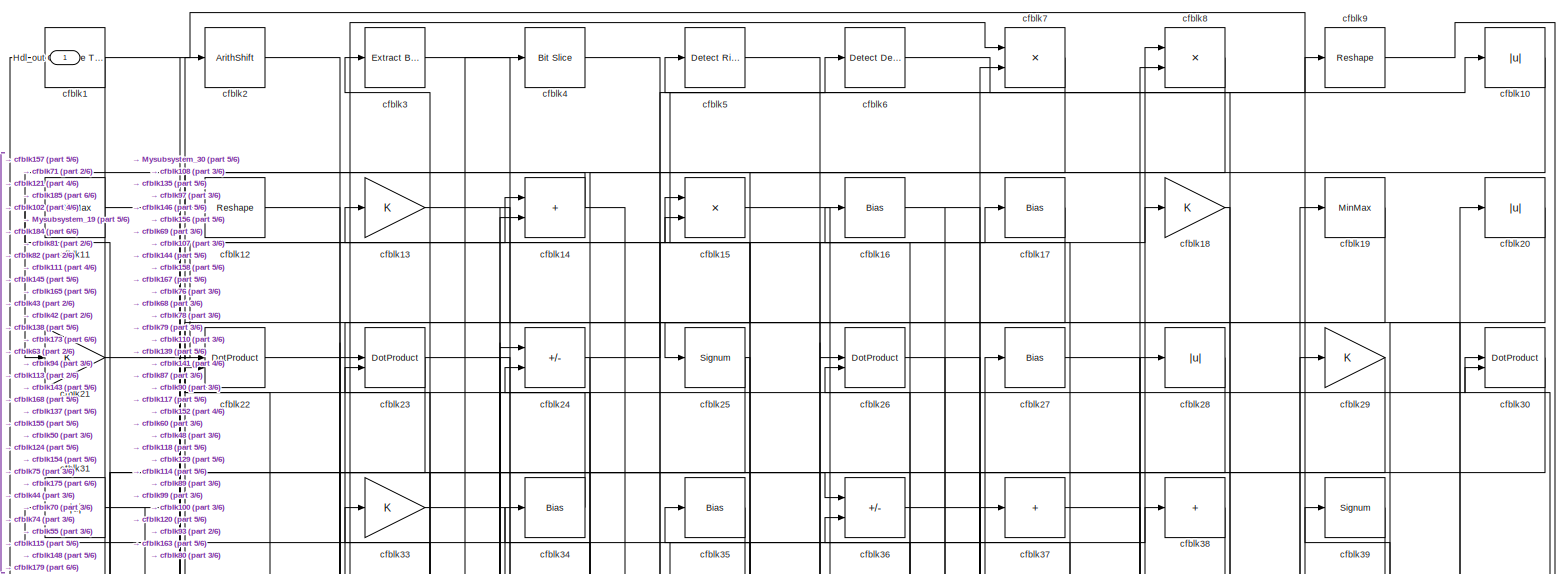
[diagram: root canvas - part 1/6, full width, top band]
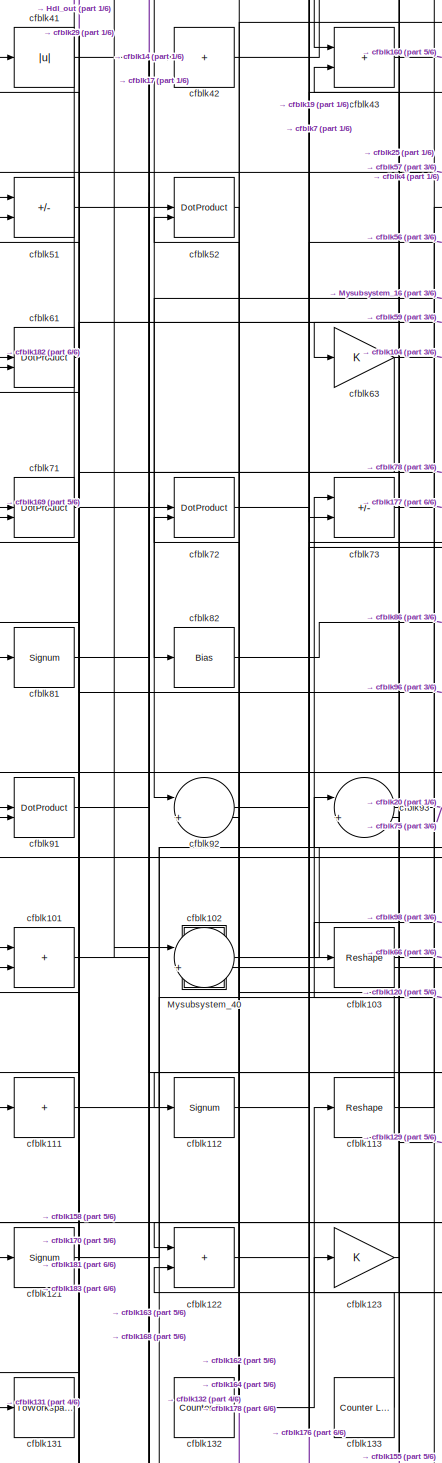
[diagram: root canvas - part 2/6, middle left region]
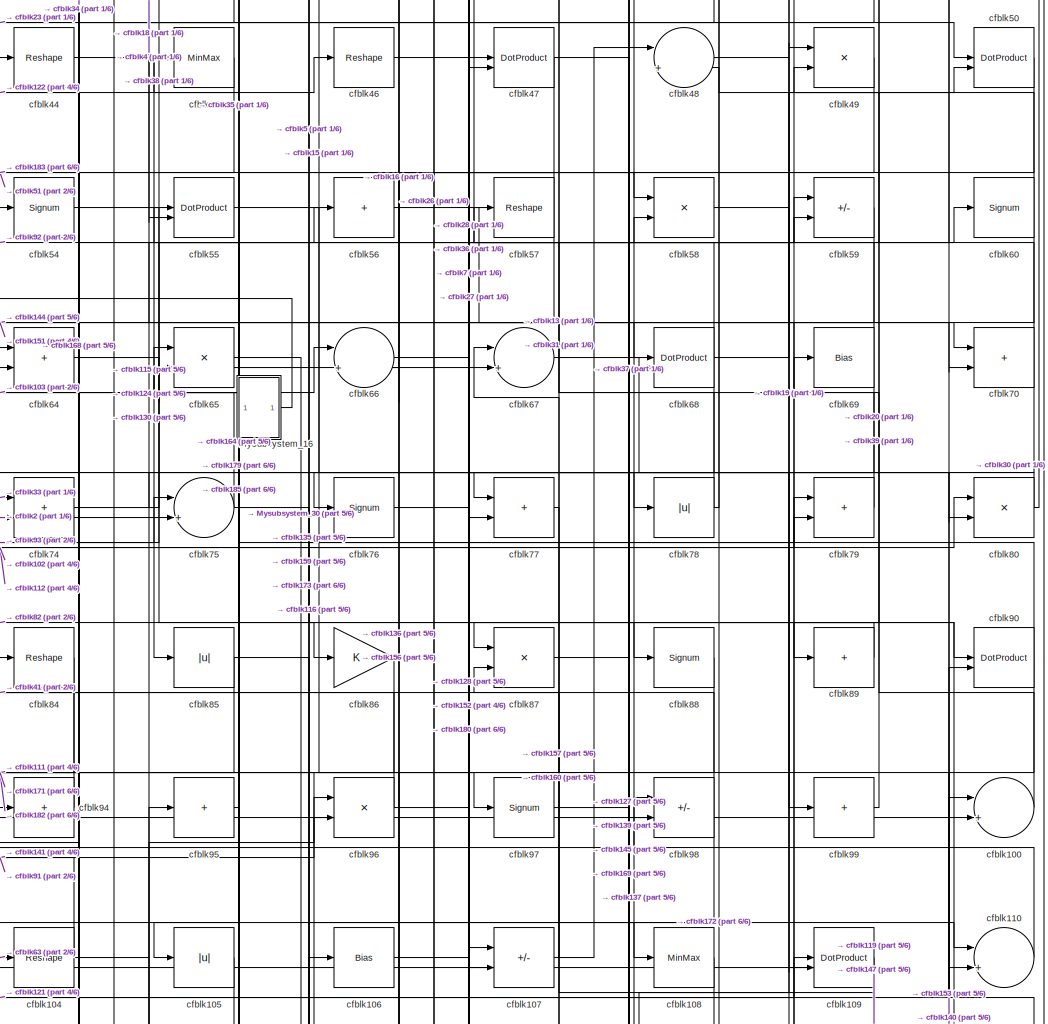
[diagram: root canvas - part 3/6, central region]
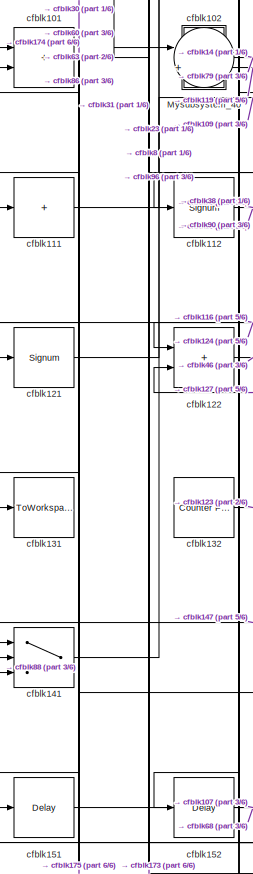
[diagram: root canvas - part 4/6, bottom left region]
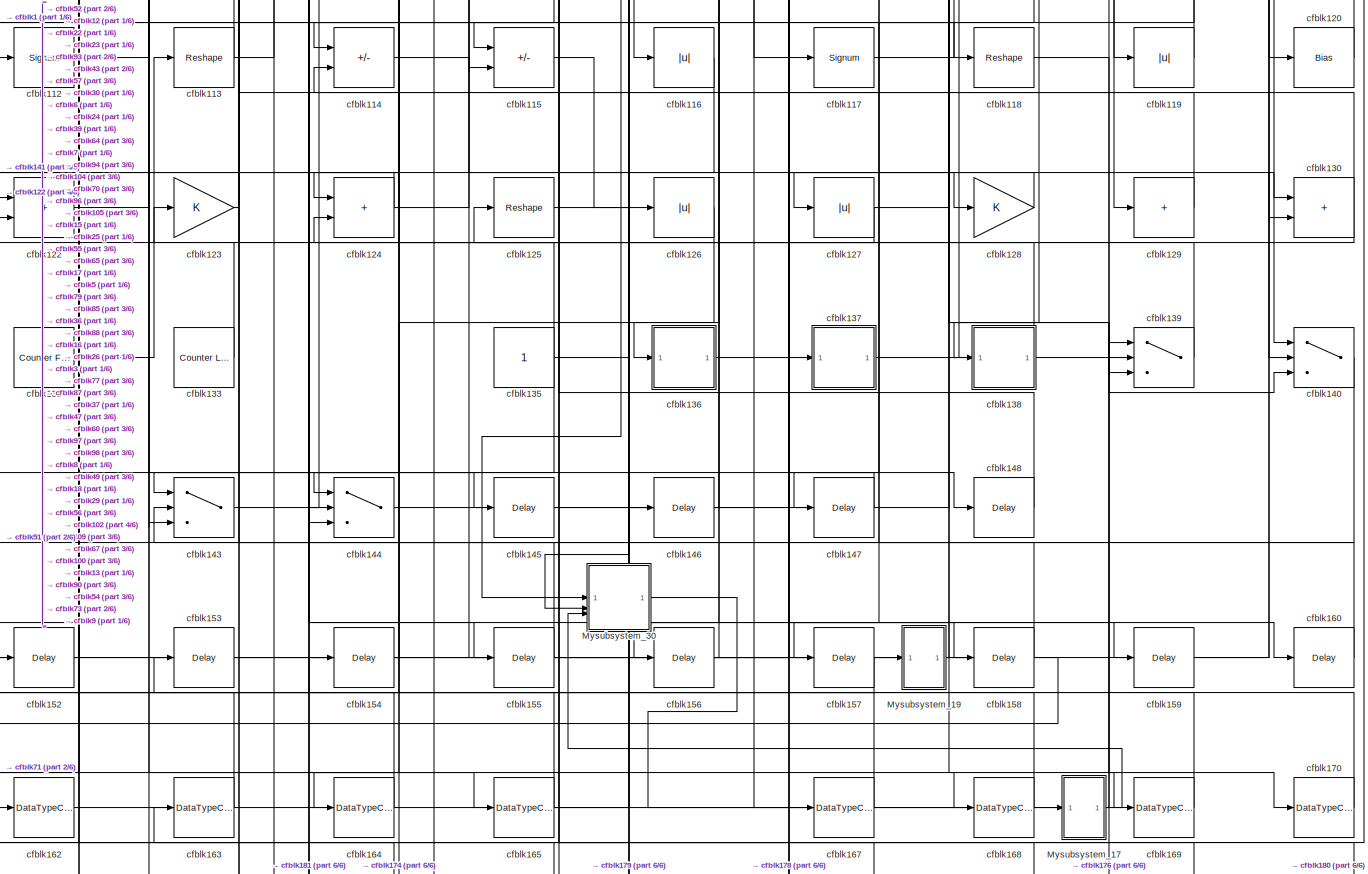
[diagram: root canvas - part 5/6, full width, bottom band]
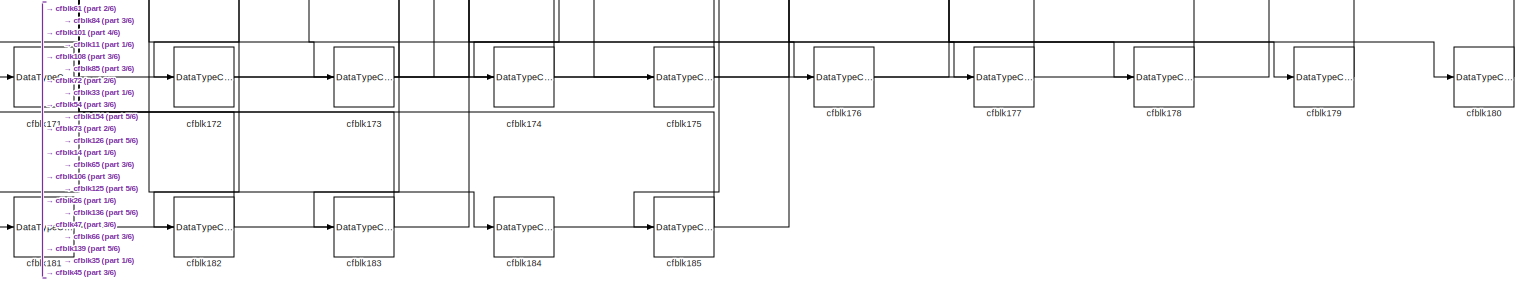
[diagram: root canvas - part 6/6, full width, bottom band]
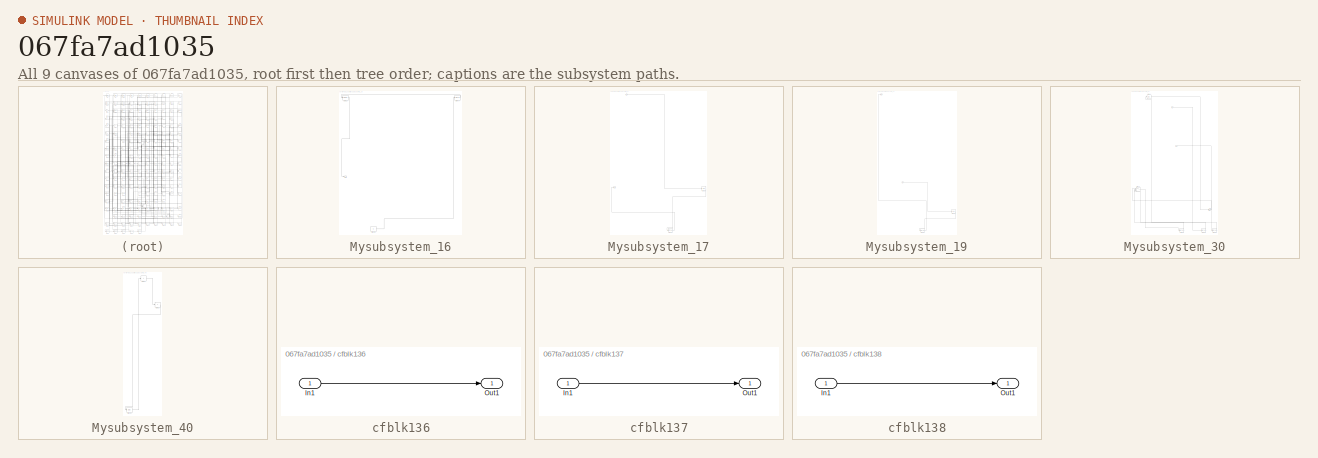
[diagram: thumbnail index - all 9 canvases of the model, root first then tree order]
MODEL slx_067fa7ad1035
KIND model
CONFIG AbsTol = auto
CONFIG EnableMultiTasking = off
CONFIG FixedStep = auto
CONFIG MaxStep = auto
CONFIG MinStep = auto
CONFIG RelTol = 1e-3
CONFIG SampleTimeConstraint = Unconstrained
CONFIG SolverName = VariableStepAuto
CONFIG StartTime = 0.0
CONFIG StopTime = 10.0
BLOCK [Outport] Hdl_out
  OutDataTypeStr = uint8
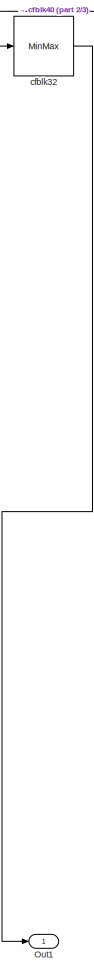
[diagram: Mysubsystem_16 - part 1/3, top left region]
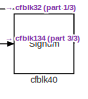
[diagram: Mysubsystem_16 - part 2/3, top right region]
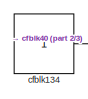
[diagram: Mysubsystem_16 - part 3/3, bottom left region]
BLOCK [SubSystem] Mysubsystem_16
  RTWFcnName = Mysubsystem_16
  RTWFcnNameOpts = User specified
  RTWFileNameOpts = Use function name
  RTWSystemCode = Reusable function
  TreatAsAtomicUnit = on
BLOCK [Outport] Mysubsystem_16/Out1
BLOCK [Constant] Mysubsystem_16/cfblk134
  SampleTime = -1
BLOCK [MinMax] Mysubsystem_16/cfblk32
BLOCK [Signum] Mysubsystem_16/cfblk40
BLOCK [SubSystem] Mysubsystem_17
  RTWFcnName = Mysubsystem_17
  RTWFcnNameOpts = User specified
  RTWFileNameOpts = Use function name
  RTWSystemCode = Reusable function
  TreatAsAtomicUnit = on
BLOCK [Inport] Mysubsystem_17/In1
BLOCK [Outport] Mysubsystem_17/Out1
BLOCK [Delay] Mysubsystem_17/cfblk150
  InputPortMap = u0
  SampleTime = 1
BLOCK [DataTypeConversion] Mysubsystem_17/cfblk187
  OutDataTypeStr = uint8
  RndMeth = Floor
  SaturateOnIntegerOverflow = off
BLOCK [SubSystem] Mysubsystem_19
  RTWFcnName = Mysubsystem_19
  RTWFcnNameOpts = User specified
  RTWFileNameOpts = Use function name
  RTWSystemCode = Reusable function
  TreatAsAtomicUnit = on
BLOCK [Inport] Mysubsystem_19/In1
BLOCK [Outport] Mysubsystem_19/Out1
BLOCK [Delay] Mysubsystem_19/cfblk149
  InputPortMap = u0
  SampleTime = 1
BLOCK [DataTypeConversion] Mysubsystem_19/cfblk166
  OutDataTypeStr = uint8
  RndMeth = Floor
  SaturateOnIntegerOverflow = off
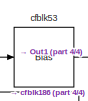
[diagram: Mysubsystem_30 - part 1/4, top left region]
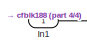
[diagram: Mysubsystem_30 - part 2/4, top center region]
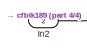
[diagram: Mysubsystem_30 - part 3/4, central region]
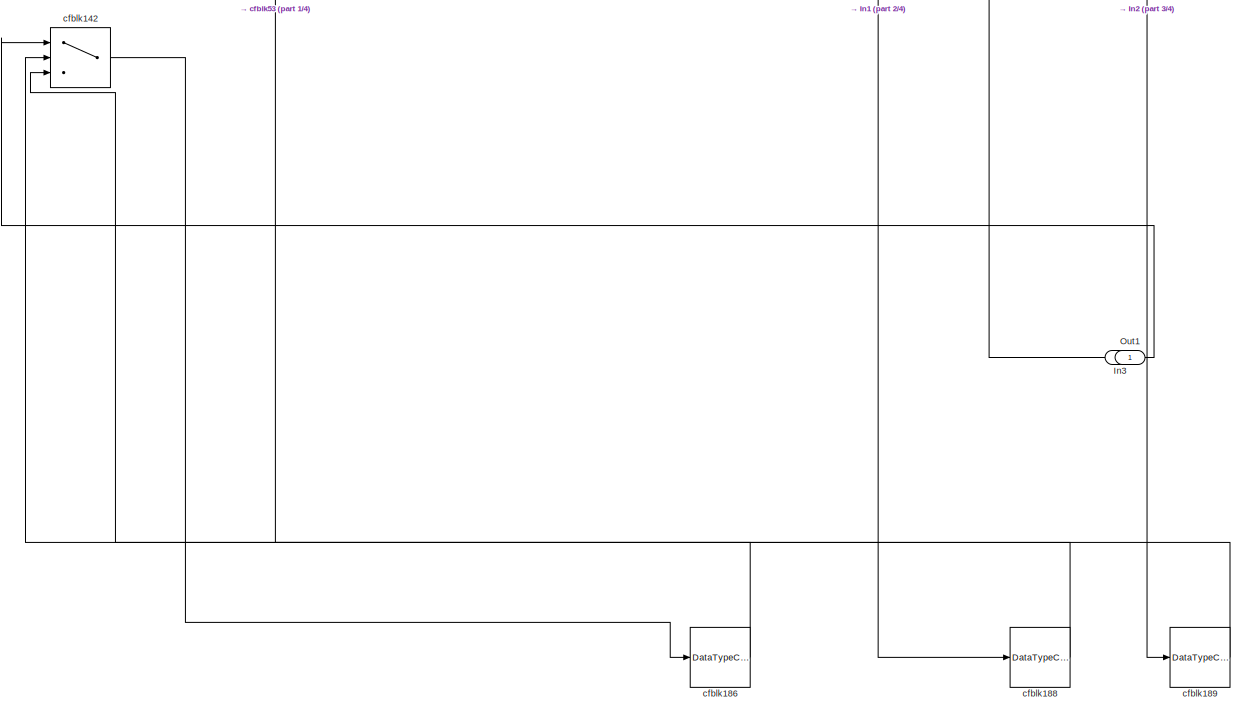
[diagram: Mysubsystem_30 - part 4/4, full width, bottom band]
BLOCK [SubSystem] Mysubsystem_30
  RTWFcnName = Mysubsystem_30
  RTWFcnNameOpts = User specified
  RTWFileNameOpts = Use function name
  RTWSystemCode = Reusable function
  TreatAsAtomicUnit = on
BLOCK [Inport] Mysubsystem_30/In1
BLOCK [Inport] Mysubsystem_30/In2
  Port = 2
BLOCK [Inport] Mysubsystem_30/In3
  Port = 3
BLOCK [Outport] Mysubsystem_30/Out1
BLOCK [Switch] Mysubsystem_30/cfblk142
  InputSameDT = off
  SaturateOnIntegerOverflow = off
BLOCK [DataTypeConversion] Mysubsystem_30/cfblk186
  OutDataTypeStr = uint8
  RndMeth = Floor
  SaturateOnIntegerOverflow = off
BLOCK [DataTypeConversion] Mysubsystem_30/cfblk188
  OutDataTypeStr = uint8
  RndMeth = Floor
  SaturateOnIntegerOverflow = off
BLOCK [DataTypeConversion] Mysubsystem_30/cfblk189
  OutDataTypeStr = uint8
  RndMeth = Floor
  SaturateOnIntegerOverflow = off
BLOCK [Bias] Mysubsystem_30/cfblk53
  Bias = 0.0
  SaturateOnIntegerOverflow = off
BLOCK [SubSystem] Mysubsystem_40
  RTWFcnName = Mysubsystem_40
  RTWFcnNameOpts = User specified
  RTWFileNameOpts = Use function name
  RTWSystemCode = Reusable function
  TreatAsAtomicUnit = on
BLOCK [Delay] Mysubsystem_40/cfblk161
  InputPortMap = u0
  SampleTime = 1
BLOCK [Sum] Mysubsystem_40/cfblk62
  IconShape = rectangular
  Inputs = +
BLOCK [Sum] Mysubsystem_40/cfblk83
  IconShape = rectangular
  Inputs = +
BLOCK [Reference] cfblk1  REF=hdlsllib/Logic and Bit
Operations/Compare
To Zero
  SourceBlock = hdlsllib/Logic and Bit\nOperations/Compare\nTo Zero
  SourceType = Compare To Zero
BLOCK [Abs] cfblk10
  OutDataTypeStr = uint8
  SaturateOnIntegerOverflow = off
BLOCK [Sum] cfblk100
  Inputs = |++
  OutDataTypeStr = uint8
BLOCK [Sum] cfblk101
  IconShape = rectangular
  OutDataTypeStr = uint8
BLOCK [Sum] cfblk102
  Inputs = |++
  OutDataTypeStr = uint8
BLOCK [Reshape] cfblk103
BLOCK [Reshape] cfblk104
BLOCK [Abs] cfblk105
  OutDataTypeStr = uint8
  SaturateOnIntegerOverflow = off
BLOCK [Bias] cfblk106
  Bias = 0.0
  SaturateOnIntegerOverflow = off
BLOCK [Sum] cfblk107
  IconShape = rectangular
  Inputs = +-
  OutDataTypeStr = uint8
BLOCK [MinMax] cfblk108
  OutDataTypeStr = uint8
BLOCK [DotProduct] cfblk109
  OutDataTypeStr = uint8
BLOCK [MinMax] cfblk11
  OutDataTypeStr = uint8
BLOCK [Sum] cfblk110
  Inputs = |++
  OutDataTypeStr = uint8
BLOCK [Sum] cfblk111
  IconShape = rectangular
  Inputs = +
  OutDataTypeStr = uint8
BLOCK [Signum] cfblk112
BLOCK [Reshape] cfblk113
BLOCK [Sum] cfblk114
  IconShape = rectangular
  Inputs = +-
  OutDataTypeStr = uint8
BLOCK [Sum] cfblk115
  IconShape = rectangular
  Inputs = +-
  OutDataTypeStr = uint8
BLOCK [Abs] cfblk116
  OutDataTypeStr = uint8
  SaturateOnIntegerOverflow = off
BLOCK [Signum] cfblk117
BLOCK [Reshape] cfblk118
BLOCK [Abs] cfblk119
  OutDataTypeStr = uint8
  SaturateOnIntegerOverflow = off
BLOCK [Reshape] cfblk12
BLOCK [Bias] cfblk120
  Bias = 0.0
  SaturateOnIntegerOverflow = off
BLOCK [Signum] cfblk121
BLOCK [Sum] cfblk122
  IconShape = rectangular
  OutDataTypeStr = uint8
BLOCK [Gain] cfblk123
  OutDataTypeStr = uint8
BLOCK [Sum] cfblk124
  IconShape = rectangular
  OutDataTypeStr = uint8
BLOCK [Reshape] cfblk125
BLOCK [Abs] cfblk126
  OutDataTypeStr = uint8
  SaturateOnIntegerOverflow = off
BLOCK [Abs] cfblk127
  OutDataTypeStr = uint8
  SaturateOnIntegerOverflow = off
BLOCK [Gain] cfblk128
  OutDataTypeStr = uint8
BLOCK [Sum] cfblk129
  IconShape = rectangular
  Inputs = +
  OutDataTypeStr = uint8
BLOCK [Gain] cfblk13
  OutDataTypeStr = uint8
BLOCK [Sum] cfblk130
  IconShape = rectangular
  OutDataTypeStr = uint8
BLOCK [ToWorkspace] cfblk131
  MaxDataPoints = inf
  SampleTime = -1
  SaveFormat = Timeseries
  VariableName = simout
BLOCK [Reference] cfblk132  REF=hdlsllib/Sources/Counter
Free-Running
  SourceBlock = hdlsllib/Sources/Counter\nFree-Running
  SourceType = Counter Free-Running
BLOCK [Reference] cfblk133  REF=hdlsllib/Sources/Counter
Limited
  SourceBlock = hdlsllib/Sources/Counter\nLimited
  SourceType = Counter Limited
BLOCK [Constant] cfblk135
  OutDataTypeStr = uint8
  SampleTime = -1
BLOCK [SubSystem] cfblk136
  LibrarySourceBlock = hdlsllib/Ports &\nSubsystems/Subsystem
BLOCK [Inport] cfblk136/In1
BLOCK [Outport] cfblk136/Out1
BLOCK [SubSystem] cfblk137
  LibrarySourceBlock = hdlsllib/Ports &\nSubsystems/Subsystem
BLOCK [Inport] cfblk137/In1
BLOCK [Outport] cfblk137/Out1
BLOCK [SubSystem] cfblk138
  LibrarySourceBlock = hdlsllib/Ports &\nSubsystems/Subsystem
BLOCK [Inport] cfblk138/In1
BLOCK [Outport] cfblk138/Out1
BLOCK [Switch] cfblk139
  InputSameDT = off
  OutDataTypeStr = uint8
  SaturateOnIntegerOverflow = off
BLOCK [Sum] cfblk14
  IconShape = rectangular
  OutDataTypeStr = uint8
BLOCK [Switch] cfblk140
  InputSameDT = off
  OutDataTypeStr = uint8
  SaturateOnIntegerOverflow = off
BLOCK [Switch] cfblk141
  InputSameDT = off
  OutDataTypeStr = uint8
  SaturateOnIntegerOverflow = off
BLOCK [Switch] cfblk143
  InputSameDT = off
  OutDataTypeStr = uint8
  SaturateOnIntegerOverflow = off
BLOCK [Switch] cfblk144
  InputSameDT = off
  OutDataTypeStr = uint8
  SaturateOnIntegerOverflow = off
BLOCK [Delay] cfblk145
  InputPortMap = u0
  SampleTime = 1
BLOCK [Delay] cfblk146
  InputPortMap = u0
  SampleTime = 1
BLOCK [Delay] cfblk147
  InputPortMap = u0
  SampleTime = 1
BLOCK [Delay] cfblk148
  InputPortMap = u0
  SampleTime = 1
BLOCK [Product] cfblk15
  Inputs = */
  OutDataTypeStr = uint8
  RndMeth = Zero
  SaturateOnIntegerOverflow = on
BLOCK [Delay] cfblk151
  InputPortMap = u0
  SampleTime = 1
BLOCK [Delay] cfblk152
  InputPortMap = u0
  SampleTime = 1
BLOCK [Delay] cfblk153
  InputPortMap = u0
  SampleTime = 1
BLOCK [Delay] cfblk154
  InputPortMap = u0
  SampleTime = 1
BLOCK [Delay] cfblk155
  InputPortMap = u0
  SampleTime = 1
BLOCK [Delay] cfblk156
  InputPortMap = u0
  SampleTime = 1
BLOCK [Delay] cfblk157
  InputPortMap = u0
  SampleTime = 1
BLOCK [Delay] cfblk158
  InputPortMap = u0
  SampleTime = 1
BLOCK [Delay] cfblk159
  InputPortMap = u0
  SampleTime = 1
BLOCK [Bias] cfblk16
  Bias = 0.0
  SaturateOnIntegerOverflow = off
BLOCK [Delay] cfblk160
  InputPortMap = u0
  SampleTime = 1
BLOCK [DataTypeConversion] cfblk162
  OutDataTypeStr = uint8
  RndMeth = Floor
  SaturateOnIntegerOverflow = off
BLOCK [DataTypeConversion] cfblk163
  OutDataTypeStr = uint8
  RndMeth = Floor
  SaturateOnIntegerOverflow = off
BLOCK [DataTypeConversion] cfblk164
  OutDataTypeStr = uint8
  RndMeth = Floor
  SaturateOnIntegerOverflow = off
BLOCK [DataTypeConversion] cfblk165
  OutDataTypeStr = uint8
  RndMeth = Floor
  SaturateOnIntegerOverflow = off
BLOCK [DataTypeConversion] cfblk167
  OutDataTypeStr = uint8
  RndMeth = Floor
  SaturateOnIntegerOverflow = off
BLOCK [DataTypeConversion] cfblk168
  OutDataTypeStr = uint8
  RndMeth = Floor
  SaturateOnIntegerOverflow = off
BLOCK [DataTypeConversion] cfblk169
  OutDataTypeStr = uint8
  RndMeth = Floor
  SaturateOnIntegerOverflow = off
BLOCK [Bias] cfblk17
  Bias = 0.0
  SaturateOnIntegerOverflow = off
BLOCK [DataTypeConversion] cfblk170
  OutDataTypeStr = uint8
  RndMeth = Floor
  SaturateOnIntegerOverflow = off
BLOCK [DataTypeConversion] cfblk171
  OutDataTypeStr = uint8
  RndMeth = Floor
  SaturateOnIntegerOverflow = off
BLOCK [DataTypeConversion] cfblk172
  OutDataTypeStr = uint8
  RndMeth = Floor
  SaturateOnIntegerOverflow = off
BLOCK [DataTypeConversion] cfblk173
  OutDataTypeStr = uint8
  RndMeth = Floor
  SaturateOnIntegerOverflow = off
BLOCK [DataTypeConversion] cfblk174
  OutDataTypeStr = uint8
  RndMeth = Floor
  SaturateOnIntegerOverflow = off
BLOCK [DataTypeConversion] cfblk175
  OutDataTypeStr = uint8
  RndMeth = Floor
  SaturateOnIntegerOverflow = off
BLOCK [DataTypeConversion] cfblk176
  OutDataTypeStr = uint8
  RndMeth = Floor
  SaturateOnIntegerOverflow = off
BLOCK [DataTypeConversion] cfblk177
  OutDataTypeStr = uint8
  RndMeth = Floor
  SaturateOnIntegerOverflow = off
BLOCK [DataTypeConversion] cfblk178
  OutDataTypeStr = uint8
  RndMeth = Floor
  SaturateOnIntegerOverflow = off
BLOCK [DataTypeConversion] cfblk179
  OutDataTypeStr = uint8
  RndMeth = Floor
  SaturateOnIntegerOverflow = off
BLOCK [Gain] cfblk18
  OutDataTypeStr = uint8
BLOCK [DataTypeConversion] cfblk180
  OutDataTypeStr = uint8
  RndMeth = Floor
  SaturateOnIntegerOverflow = off
BLOCK [DataTypeConversion] cfblk181
  OutDataTypeStr = uint8
  RndMeth = Floor
  SaturateOnIntegerOverflow = off
BLOCK [DataTypeConversion] cfblk182
  OutDataTypeStr = uint8
  RndMeth = Floor
  SaturateOnIntegerOverflow = off
BLOCK [DataTypeConversion] cfblk183
  OutDataTypeStr = uint8
  RndMeth = Floor
  SaturateOnIntegerOverflow = off
BLOCK [DataTypeConversion] cfblk184
  OutDataTypeStr = uint8
  RndMeth = Floor
  SaturateOnIntegerOverflow = off
BLOCK [DataTypeConversion] cfblk185
  OutDataTypeStr = uint8
  RndMeth = Floor
  SaturateOnIntegerOverflow = off
BLOCK [MinMax] cfblk19
  OutDataTypeStr = uint8
BLOCK [ArithShift] cfblk2
  BitShiftNumber = 8
  InputPortMap = u0
BLOCK [Abs] cfblk20
  OutDataTypeStr = uint8
  SaturateOnIntegerOverflow = off
BLOCK [Gain] cfblk21
  OutDataTypeStr = uint8
BLOCK [DotProduct] cfblk22
  OutDataTypeStr = uint8
BLOCK [DotProduct] cfblk23
  OutDataTypeStr = uint8
BLOCK [Sum] cfblk24
  IconShape = rectangular
  Inputs = +-
  OutDataTypeStr = uint8
BLOCK [Signum] cfblk25
BLOCK [DotProduct] cfblk26
  OutDataTypeStr = uint8
BLOCK [Bias] cfblk27
  Bias = 0.0
  SaturateOnIntegerOverflow = off
BLOCK [Abs] cfblk28
  OutDataTypeStr = uint8
  SaturateOnIntegerOverflow = off
BLOCK [Gain] cfblk29
  OutDataTypeStr = uint8
BLOCK [Reference] cfblk3  REF=simulink/Logic and Bit
Operations/Extract Bits
  LibrarySourceBlock = hdlsllib/Logic and Bit\nOperations/Extract Bits
  SourceBlock = simulink/Logic and Bit\nOperations/Extract Bits
  SourceType = Extract Bits
BLOCK [DotProduct] cfblk30
  OutDataTypeStr = uint8
BLOCK [Abs] cfblk31
  OutDataTypeStr = uint8
  SaturateOnIntegerOverflow = off
BLOCK [Gain] cfblk33
  OutDataTypeStr = uint8
BLOCK [Bias] cfblk34
  Bias = 0.0
  SaturateOnIntegerOverflow = off
BLOCK [Bias] cfblk35
  Bias = 0.0
  SaturateOnIntegerOverflow = off
BLOCK [Sum] cfblk36
  IconShape = rectangular
  Inputs = +-
  OutDataTypeStr = uint8
BLOCK [Sum] cfblk37
  IconShape = rectangular
  Inputs = +
  OutDataTypeStr = uint8
BLOCK [Sum] cfblk38
  IconShape = rectangular
  Inputs = +
  OutDataTypeStr = uint8
BLOCK [Signum] cfblk39
BLOCK [Reference] cfblk4  REF=hdlsllib/Logic and Bit
Operations/Bit Slice
  SourceBlock = hdlsllib/Logic and Bit\nOperations/Bit Slice
  SourceType = Bit Slice
BLOCK [Abs] cfblk41
  OutDataTypeStr = uint8
  SaturateOnIntegerOverflow = off
BLOCK [Sum] cfblk42
  IconShape = rectangular
  Inputs = +
  OutDataTypeStr = uint8
BLOCK [Sum] cfblk43
  IconShape = rectangular
  OutDataTypeStr = uint8
BLOCK [Reshape] cfblk44
BLOCK [MinMax] cfblk45
  OutDataTypeStr = uint8
BLOCK [Reshape] cfblk46
BLOCK [DotProduct] cfblk47
  OutDataTypeStr = uint8
BLOCK [Sum] cfblk48
  Inputs = |++
  OutDataTypeStr = uint8
BLOCK [Product] cfblk49
  Inputs = */
  OutDataTypeStr = uint8
  RndMeth = Zero
  SaturateOnIntegerOverflow = on
BLOCK [Reference] cfblk5  REF=hdlsllib/Logic and Bit
Operations/Detect Rise
Nonnegative
  SourceBlock = hdlsllib/Logic and Bit\nOperations/Detect Rise\nNonnegative
  SourceType = Detect Rise Nonnegative
BLOCK [DotProduct] cfblk50
  OutDataTypeStr = uint8
BLOCK [Sum] cfblk51
  IconShape = rectangular
  Inputs = +-
  OutDataTypeStr = uint8
BLOCK [DotProduct] cfblk52
  OutDataTypeStr = uint8
BLOCK [Signum] cfblk54
BLOCK [DotProduct] cfblk55
  OutDataTypeStr = uint8
BLOCK [Sum] cfblk56
  IconShape = rectangular
  Inputs = +
  OutDataTypeStr = uint8
BLOCK [Reshape] cfblk57
BLOCK [Product] cfblk58
  Inputs = */
  OutDataTypeStr = uint8
  RndMeth = Zero
  SaturateOnIntegerOverflow = on
BLOCK [Sum] cfblk59
  IconShape = rectangular
  Inputs = +-
  OutDataTypeStr = uint8
BLOCK [Reference] cfblk6  REF=simulink/Logic and Bit
Operations/Detect
Decrease
  LibrarySourceBlock = hdlsllib/Logic and Bit\nOperations/Detect\nDecrease
  SourceBlock = simulink/Logic and Bit\nOperations/Detect\nDecrease
  SourceType = Detect Decrease
BLOCK [Signum] cfblk60
BLOCK [DotProduct] cfblk61
  OutDataTypeStr = uint8
BLOCK [Gain] cfblk63
  OutDataTypeStr = uint8
BLOCK [Sum] cfblk64
  IconShape = rectangular
  OutDataTypeStr = uint8
BLOCK [Product] cfblk65
  Inputs = */
  OutDataTypeStr = uint8
  RndMeth = Zero
  SaturateOnIntegerOverflow = on
BLOCK [Sum] cfblk66
  Inputs = |++
  OutDataTypeStr = uint8
BLOCK [Sum] cfblk67
  Inputs = |++
  OutDataTypeStr = uint8
BLOCK [DotProduct] cfblk68
  OutDataTypeStr = uint8
BLOCK [Bias] cfblk69
  Bias = 0.0
  SaturateOnIntegerOverflow = off
BLOCK [Product] cfblk7
  Inputs = */
  OutDataTypeStr = uint8
  RndMeth = Zero
  SaturateOnIntegerOverflow = on
BLOCK [Sum] cfblk70
  IconShape = rectangular
  OutDataTypeStr = uint8
BLOCK [DotProduct] cfblk71
  OutDataTypeStr = uint8
BLOCK [DotProduct] cfblk72
  OutDataTypeStr = uint8
BLOCK [Sum] cfblk73
  IconShape = rectangular
  Inputs = +-
  OutDataTypeStr = uint8
BLOCK [Sum] cfblk74
  IconShape = rectangular
  OutDataTypeStr = uint8
BLOCK [Sum] cfblk75
  Inputs = |++
  OutDataTypeStr = uint8
BLOCK [Signum] cfblk76
BLOCK [Sum] cfblk77
  IconShape = rectangular
  OutDataTypeStr = uint8
BLOCK [Abs] cfblk78
  OutDataTypeStr = uint8
  SaturateOnIntegerOverflow = off
BLOCK [Sum] cfblk79
  IconShape = rectangular
  OutDataTypeStr = uint8
BLOCK [Product] cfblk8
  Inputs = */
  OutDataTypeStr = uint8
  RndMeth = Zero
  SaturateOnIntegerOverflow = on
BLOCK [Product] cfblk80
  Inputs = */
  OutDataTypeStr = uint8
  RndMeth = Zero
  SaturateOnIntegerOverflow = on
BLOCK [Signum] cfblk81
BLOCK [Bias] cfblk82
  Bias = 0.0
  SaturateOnIntegerOverflow = off
BLOCK [Reshape] cfblk84
BLOCK [Abs] cfblk85
  OutDataTypeStr = uint8
  SaturateOnIntegerOverflow = off
BLOCK [Gain] cfblk86
  OutDataTypeStr = uint8
BLOCK [Product] cfblk87
  Inputs = */
  OutDataTypeStr = uint8
  RndMeth = Zero
  SaturateOnIntegerOverflow = on
BLOCK [Signum] cfblk88
BLOCK [Sum] cfblk89
  IconShape = rectangular
  Inputs = +
  OutDataTypeStr = uint8
BLOCK [Reshape] cfblk9
BLOCK [DotProduct] cfblk90
  OutDataTypeStr = uint8
BLOCK [DotProduct] cfblk91
  OutDataTypeStr = uint8
BLOCK [Sum] cfblk92
  Inputs = |++
  OutDataTypeStr = uint8
BLOCK [Sum] cfblk93
  Inputs = |++
  OutDataTypeStr = uint8
BLOCK [Sum] cfblk94
  IconShape = rectangular
  Inputs = +
  OutDataTypeStr = uint8
BLOCK [Sum] cfblk95
  IconShape = rectangular
  Inputs = +
  OutDataTypeStr = uint8
BLOCK [Product] cfblk96
  Inputs = */
  OutDataTypeStr = uint8
  RndMeth = Zero
  SaturateOnIntegerOverflow = on
BLOCK [Signum] cfblk97
BLOCK [Sum] cfblk98
  IconShape = rectangular
  Inputs = +-
  OutDataTypeStr = uint8
BLOCK [Sum] cfblk99
  IconShape = rectangular
  Inputs = +
  OutDataTypeStr = uint8
LINE Mysubsystem_16/cfblk134:1 -> Mysubsystem_16/cfblk40:1
LINE Mysubsystem_16/cfblk32:1 -> Mysubsystem_16/Out1:1
LINE Mysubsystem_16/cfblk40:1 -> Mysubsystem_16/cfblk32:1
LINE Mysubsystem_16:1 -> cfblk92:1
LINE Mysubsystem_17/In1:1 -> Mysubsystem_17/cfblk150:1
LINE Mysubsystem_17/cfblk150:1 -> Mysubsystem_17/cfblk187:1
LINE Mysubsystem_17/cfblk187:1 -> Mysubsystem_17/Out1:1
LINE Mysubsystem_17:1 -> Mysubsystem_30:3
LINE Mysubsystem_19/In1:1 -> Mysubsystem_19/cfblk149:1
LINE Mysubsystem_19/cfblk149:1 -> Mysubsystem_19/cfblk166:1
LINE Mysubsystem_19/cfblk166:1 -> Mysubsystem_19/Out1:1
LINE Mysubsystem_19:1 -> cfblk22:1
LINE Mysubsystem_30/In1:1 -> Mysubsystem_30/cfblk188:1
LINE Mysubsystem_30/In2:1 -> Mysubsystem_30/cfblk189:1
LINE Mysubsystem_30/In3:1 -> Mysubsystem_30/cfblk142:1
LINE Mysubsystem_30/cfblk142:1 -> Mysubsystem_30/cfblk186:1
LINE Mysubsystem_30/cfblk186:1 -> Mysubsystem_30/cfblk53:1
LINE Mysubsystem_30/cfblk188:1 -> Mysubsystem_30/cfblk142:2
LINE Mysubsystem_30/cfblk189:1 -> Mysubsystem_30/cfblk142:3
LINE Mysubsystem_30/cfblk53:1 -> Mysubsystem_30/Out1:1
LINE Mysubsystem_30:1 -> Mysubsystem_17:1
LINE Mysubsystem_40/cfblk161:1 -> Mysubsystem_40/cfblk62:1
LINE Mysubsystem_40/cfblk62:1 -> Mysubsystem_40/cfblk83:1
LINE Mysubsystem_40/cfblk83:1 -> Mysubsystem_40/cfblk161:1
LINE cfblk100:1 -> cfblk69:1
LINE cfblk101:1 -> cfblk173:1
NET cfblk102:1 -> cfblk14:2, cfblk79:1
LINE cfblk103:1 -> cfblk66:1
NET cfblk104:1 -> cfblk130:1, cfblk130:2, cfblk91:2, cfblk95:1
LINE cfblk105:1 -> cfblk164:1
NET cfblk106:1 -> cfblk47:2, cfblk59:2
NET cfblk107:1 -> cfblk48:1, cfblk57:1
LINE cfblk108:1 -> cfblk172:1
LINE cfblk109:1 -> cfblk147:1
LINE cfblk10:1 -> cfblk25:1
LINE cfblk110:1 -> cfblk98:1
LINE cfblk111:1 -> cfblk23:1
NET cfblk112:1 -> cfblk75:1, cfblk80:1
NET cfblk113:1 -> cfblk4:1, cfblk92:2
LINE cfblk114:1 -> Mysubsystem_19:1
LINE cfblk115:1 -> cfblk126:1
LINE cfblk116:1 -> cfblk141:2
LINE cfblk117:1 -> cfblk8:1
LINE cfblk118:1 -> cfblk170:1
NET cfblk119:1 -> cfblk102:2, cfblk67:1
LINE cfblk11:1 -> cfblk184:1
LINE cfblk120:1 -> cfblk73:1
LINE cfblk121:1 -> cfblk109:1
LINE cfblk122:1 -> cfblk46:1
LINE cfblk123:1 -> cfblk43:2
NET cfblk124:1 -> cfblk122:1, cfblk96:2
LINE cfblk125:1 -> cfblk179:1
LINE cfblk126:1 -> cfblk174:1
NET cfblk127:1 -> cfblk122:2, cfblk60:1
LINE cfblk128:1 -> cfblk127:1
LINE cfblk129:1 -> cfblk93:1
LINE cfblk12:1 -> cfblk145:1
NET cfblk130:1 -> cfblk124:2, cfblk94:1
LINE cfblk132:1 -> cfblk123:1
LINE cfblk133:1 -> cfblk113:1
NET cfblk135:1 -> cfblk114:2, cfblk143:1, cfblk144:3, cfblk17:1, cfblk79:2
LINE cfblk136/In1:1 -> cfblk136/Out1:1
NET cfblk136:1 -> cfblk148:1, cfblk178:1
LINE cfblk137/In1:1 -> cfblk137/Out1:1
LINE cfblk137:1 -> cfblk49:1
LINE cfblk138/In1:1 -> cfblk138/Out1:1
NET cfblk138:1 -> cfblk140:3, cfblk3:1
LINE cfblk139:1 -> cfblk55:1
NET cfblk13:1 -> cfblk100:2, cfblk120:1
LINE cfblk140:1 -> cfblk143:2
NET cfblk141:1 -> cfblk8:2, cfblk96:1
NET cfblk143:1 -> cfblk30:2, cfblk6:1
LINE cfblk144:1 -> cfblk37:1
LINE cfblk145:1 -> cfblk98:2
LINE cfblk146:1 -> cfblk26:2
LINE cfblk147:1 -> cfblk141:1
LINE cfblk148:1 -> cfblk15:2
NET cfblk14:1 -> cfblk12:1, cfblk175:1
LINE cfblk151:1 -> cfblk68:2
LINE cfblk152:1 -> cfblk107:1
LINE cfblk153:1 -> cfblk90:2
LINE cfblk154:1 -> cfblk24:2
LINE cfblk155:1 -> cfblk93:2
LINE cfblk156:1 -> cfblk36:2
LINE cfblk157:1 -> cfblk1:1
LINE cfblk158:1 -> cfblk51:2
LINE cfblk159:1 -> cfblk100:1
LINE cfblk15:1 -> cfblk97:1
LINE cfblk160:1 -> cfblk87:2
LINE cfblk162:1 -> cfblk146:1
LINE cfblk163:1 -> cfblk52:1
LINE cfblk164:1 -> cfblk52:2
NET cfblk165:1 -> cfblk153:1, cfblk29:1
LINE cfblk167:1 -> cfblk22:2
NET cfblk168:1 -> cfblk24:1, cfblk64:2
LINE cfblk169:1 -> cfblk71:1
NET cfblk16:1 -> cfblk117:1, cfblk158:1
LINE cfblk170:1 -> cfblk71:2
LINE cfblk171:1 -> cfblk47:1
LINE cfblk172:1 -> cfblk84:1
NET cfblk173:1 -> cfblk106:1, cfblk33:1, cfblk54:1
LINE cfblk174:1 -> cfblk101:1
LINE cfblk175:1 -> cfblk101:2
LINE cfblk176:1 -> cfblk139:1
LINE cfblk177:1 -> cfblk72:1
LINE cfblk178:1 -> cfblk72:2
NET cfblk179:1 -> cfblk35:1, cfblk45:1
LINE cfblk17:1 -> cfblk82:1
LINE cfblk180:1 -> cfblk125:1
LINE cfblk181:1 -> cfblk154:1
LINE cfblk182:1 -> cfblk61:1
LINE cfblk183:1 -> cfblk61:2
LINE cfblk184:1 -> cfblk26:1
LINE cfblk185:1 -> cfblk11:1
LINE cfblk18:1 -> cfblk138:1
LINE cfblk19:1 -> cfblk43:1
NET cfblk1:1 -> cfblk118:1, cfblk129:1
LINE cfblk20:1 -> cfblk89:1
LINE cfblk21:1 -> cfblk15:1
LINE cfblk22:1 -> cfblk165:1
NET cfblk23:1 -> cfblk143:3, cfblk155:1, cfblk50:1
NET cfblk24:1 -> cfblk10:1, cfblk144:1
NET cfblk25:1 -> cfblk115:1, cfblk63:1
NET cfblk26:1 -> cfblk167:1, cfblk80:2
LINE cfblk27:1 -> cfblk90:1
LINE cfblk28:1 -> cfblk107:2
LINE cfblk29:1 -> cfblk81:1
LINE cfblk2:1 -> cfblk74:2
LINE cfblk30:1 -> cfblk121:1
NET cfblk31:1 -> cfblk102:1, cfblk36:1
LINE cfblk33:1 -> cfblk74:1
LINE cfblk34:1 -> cfblk2:1
LINE cfblk35:1 -> cfblk55:2
LINE cfblk36:1 -> cfblk68:1
NET cfblk37:1 -> cfblk110:1, cfblk139:2
LINE cfblk38:1 -> cfblk152:1
LINE cfblk39:1 -> cfblk114:1
LINE cfblk3:1 -> cfblk137:1
LINE cfblk41:1 -> cfblk73:2
LINE cfblk42:1 -> cfblk7:1
LINE cfblk43:1 -> cfblk160:1
NET cfblk44:1 -> cfblk18:1, cfblk85:1
LINE cfblk45:1 -> cfblk183:1
LINE cfblk46:1 -> cfblk58:1
NET cfblk47:1 -> cfblk136:1, cfblk139:3
NET cfblk48:1 -> cfblk19:1, cfblk70:2
LINE cfblk49:1 -> cfblk66:2
LINE cfblk4:1 -> cfblk70:1
LINE cfblk50:1 -> cfblk105:1
LINE cfblk51:1 -> cfblk78:1
LINE cfblk52:1 -> cfblk162:1
LINE cfblk54:1 -> cfblk140:1
LINE cfblk55:1 -> cfblk99:1
LINE cfblk56:1 -> cfblk119:1
NET cfblk57:1 -> cfblk144:2, cfblk51:1
LINE cfblk58:1 -> cfblk109:2
LINE cfblk59:1 -> cfblk91:1
NET cfblk5:1 -> Mysubsystem_30:2, cfblk108:1
NET cfblk60:1 -> cfblk151:1, cfblk5:1
LINE cfblk61:1 -> cfblk181:1
NET cfblk63:1 -> cfblk104:1, cfblk131:1
LINE cfblk64:1 -> cfblk67:2
NET cfblk65:1 -> Mysubsystem_30:1, cfblk185:1
NET cfblk66:1 -> cfblk180:1, cfblk59:1
LINE cfblk67:1 -> cfblk110:2
NET cfblk68:1 -> cfblk27:1, cfblk50:2, cfblk77:1
NET cfblk69:1 -> cfblk16:1, cfblk44:1, cfblk77:2
LINE cfblk6:1 -> cfblk9:1
NET cfblk70:1 -> cfblk115:2, cfblk49:2
NET cfblk71:1 -> Hdl_out:1, cfblk168:1
LINE cfblk72:1 -> cfblk176:1
LINE cfblk73:1 -> cfblk177:1
NET cfblk74:1 -> cfblk38:1, cfblk58:2
NET cfblk75:1 -> cfblk34:1, cfblk88:1
LINE cfblk76:1 -> cfblk7:2
LINE cfblk77:1 -> cfblk157:1
NET cfblk78:1 -> cfblk31:1, cfblk48:2
LINE cfblk79:1 -> cfblk13:1
LINE cfblk7:1 -> cfblk124:1
NET cfblk80:1 -> cfblk30:1, cfblk76:1
LINE cfblk81:1 -> cfblk14:1
LINE cfblk82:1 -> cfblk86:1
LINE cfblk84:1 -> cfblk171:1
NET cfblk85:1 -> cfblk159:1, cfblk182:1
LINE cfblk86:1 -> cfblk111:1
LINE cfblk87:1 -> cfblk28:1
NET cfblk88:1 -> cfblk141:3, cfblk156:1
LINE cfblk89:1 -> cfblk87:1
LINE cfblk8:1 -> cfblk21:1
NET cfblk90:1 -> cfblk112:1, cfblk116:1, cfblk140:2, cfblk64:1
LINE cfblk91:1 -> cfblk42:1
LINE cfblk92:1 -> cfblk56:1
NET cfblk93:1 -> cfblk20:1, cfblk75:2
LINE cfblk94:1 -> cfblk23:2
LINE cfblk95:1 -> cfblk65:1
NET cfblk96:1 -> cfblk128:1, cfblk41:1
LINE cfblk97:1 -> cfblk169:1
NET cfblk98:1 -> cfblk103:1, cfblk65:2
LINE cfblk99:1 -> cfblk39:1
LINE cfblk9:1 -> cfblk163:1
note: NET lines group one-source signal fan-out (src -> all destinations, sorted); 1:1 wires keep LINE
